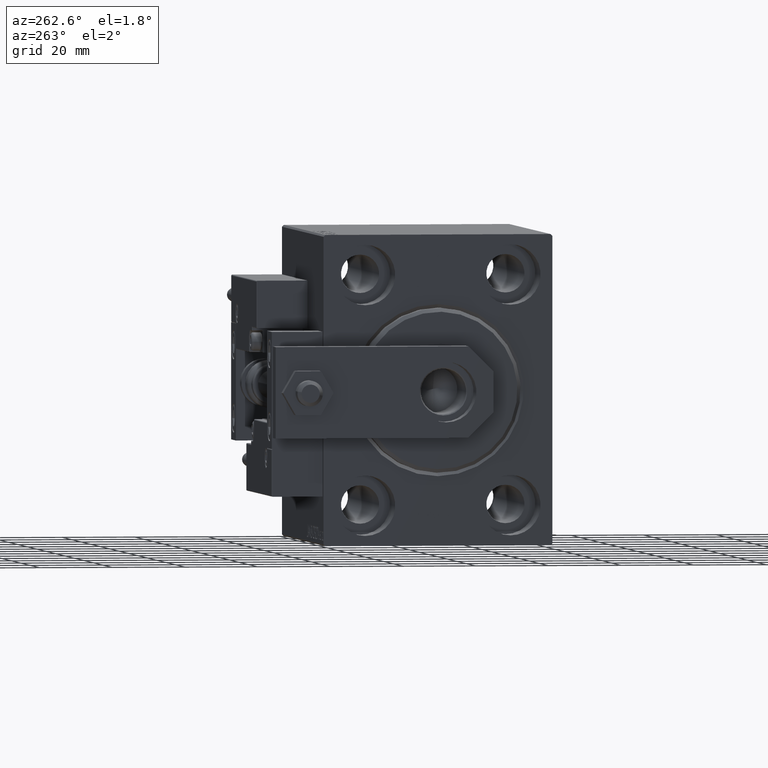
[diagram: clean part render]
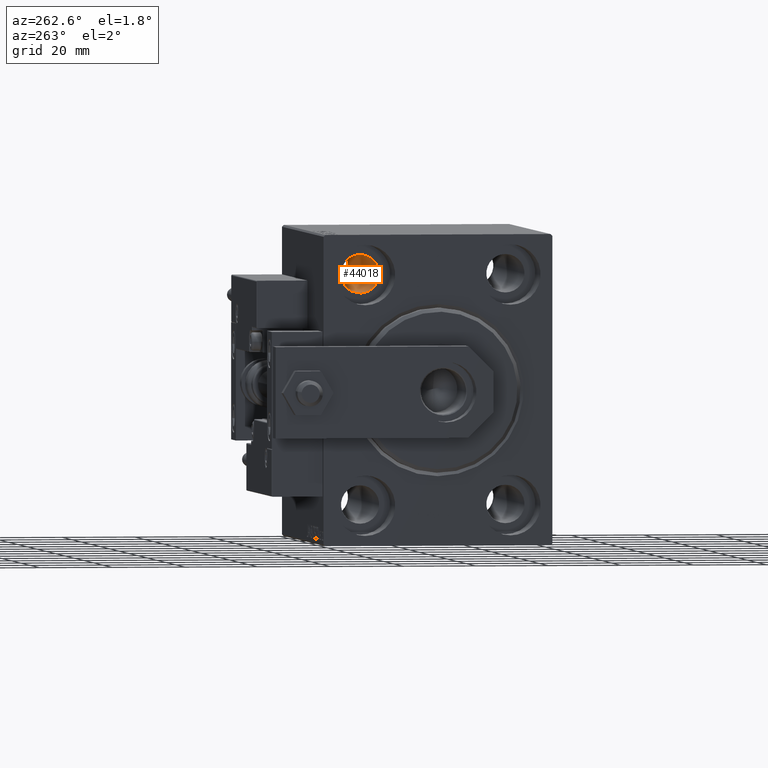
[diagram: same view with one face highlighted and labeled with its STEP entity id]
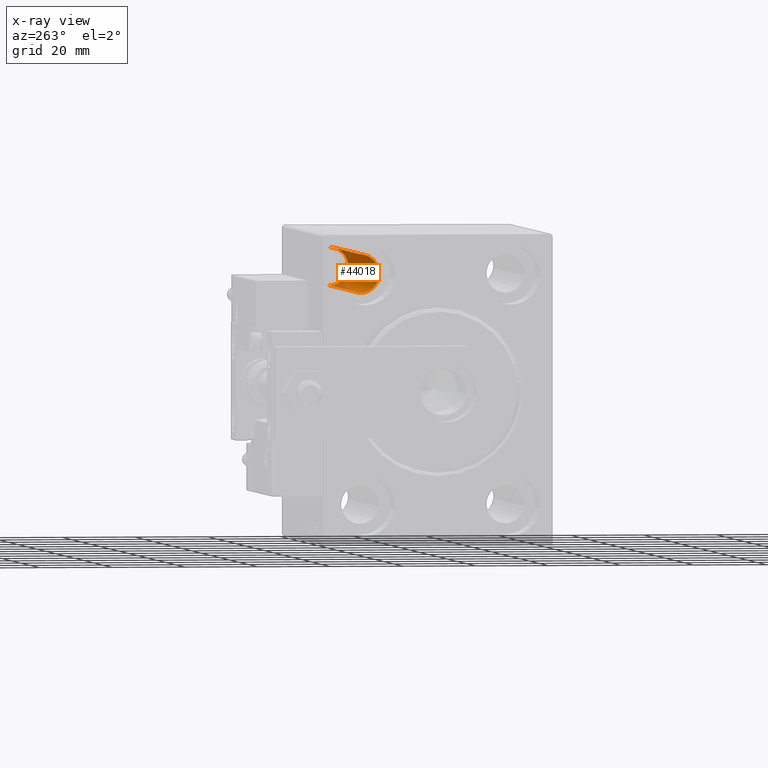
[diagram: x-ray of the same camera — body ghosted, the highlighted face saturated]
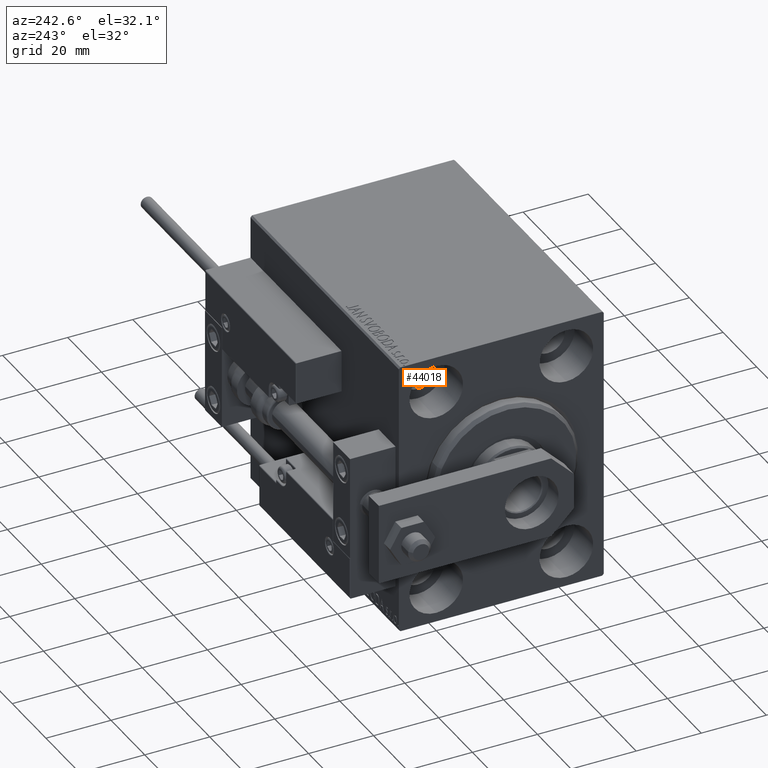
[diagram: same view with one face highlighted and labeled with its STEP entity id]
A machine part, auxiliary view. The second image highlights one B-rep face of the part: STEP entity #44018.
The next image is the same camera in x-ray: the body ghosted, the highlighted face saturated — about 13% of this face is hidden behind the body in this view.
A second angle (auxiliary view) of the same face is appended — the face is thin or edge-on in the first view.
In plain terms, the highlighted cylindrical surface (edge-blend (fillet) strip) has radius 5.25 mm, axis along (-1, -0, -0).
Its self-contained STEP definition (entity closure, byte-faithful):
#1089 = LINE ( 'NONE', #20844, #45565 ) ;
#1366 = DIRECTION ( 'NONE',  ( 0.000000000000000000, 0.000000000000000000, 1.000000000000000000 ) ) ;
#2947 = CIRCLE ( 'NONE', #11046, 5.249999999999997335 ) ;
#2964 = FACE_OUTER_BOUND ( 'NONE', #44362, .T. ) ;
#3093 = CARTESIAN_POINT ( 'NONE',  ( 10.99999999999999645, 20.00000000000000355, 26.25000000000000355 ) ) ;
#3532 = VERTEX_POINT ( 'NONE', #40714 ) ;
#10625 = ORIENTED_EDGE ( 'NONE', *, *, #14974, .T. ) ;
#11046 = AXIS2_PLACEMENT_3D ( 'NONE', #40684, #47279, #24757 ) ;
#14974 = EDGE_CURVE ( 'NONE', #24070, #15674, #43717, .T. ) ;
#15674 = VERTEX_POINT ( 'NONE', #35309 ) ;
#16209 = ORIENTED_EDGE ( 'NONE', *, *, #23191, .T. ) ;
#16558 = DIRECTION ( 'NONE',  ( -1.000000000000000000, 0.000000000000000000, 0.000000000000000000 ) ) ;
#17295 = VECTOR ( 'NONE', #31843, 1000.000000000000000 ) ;
#17647 = CARTESIAN_POINT ( 'NONE',  ( 88.00000000000000000, 20.00000000000000355, 31.50000000000000000 ) ) ;
#18683 = AXIS2_PLACEMENT_3D ( 'NONE', #36052, #16558, #1366 ) ;
#20844 = CARTESIAN_POINT ( 'NONE',  ( 88.00000000000000000, 20.00000000000000355, 36.75000000000000000 ) ) ;
#21994 = EDGE_CURVE ( 'NONE', #39038, #15674, #1089, .T. ) ;
#23191 = EDGE_CURVE ( 'NONE', #3532, #24070, #49132, .T. ) ;
#24070 = VERTEX_POINT ( 'NONE', #3093 ) ;
#24098 = ORIENTED_EDGE ( 'NONE', *, *, #21994, .F. ) ;
#24757 = DIRECTION ( 'NONE',  ( 0.000000000000000000, 0.000000000000000000, -1.000000000000000000 ) ) ;
#31843 = DIRECTION ( 'NONE',  ( -1.000000000000000000, -0.000000000000000000, -0.000000000000000000 ) ) ;
#32564 = EDGE_CURVE ( 'NONE', #3532, #39038, #2947, .T. ) ;
#35309 = CARTESIAN_POINT ( 'NONE',  ( 10.99999999999999645, 20.00000000000000355, 36.75000000000000000 ) ) ;
#36052 = CARTESIAN_POINT ( 'NONE',  ( 10.99999999999999645, 20.00000000000000355, 31.50000000000000000 ) ) ;
#36236 = CARTESIAN_POINT ( 'NONE',  ( 77.00000000000000000, 20.00000000000000355, 36.75000000000000000 ) ) ;
#36274 = DIRECTION ( 'NONE',  ( -1.000000000000000000, -0.000000000000000000, -0.000000000000000000 ) ) ;
#36890 = CYLINDRICAL_SURFACE ( 'NONE', #48349, 5.249999999999997335 ) ;
#39038 = VERTEX_POINT ( 'NONE', #36236 ) ;
#40684 = CARTESIAN_POINT ( 'NONE',  ( 77.00000000000000000, 20.00000000000000355, 31.50000000000000000 ) ) ;
#40714 = CARTESIAN_POINT ( 'NONE',  ( 77.00000000000000000, 20.00000000000000355, 26.25000000000000355 ) ) ;
#41530 = CARTESIAN_POINT ( 'NONE',  ( 88.00000000000000000, 20.00000000000000355, 26.25000000000000355 ) ) ;
#41712 = ORIENTED_EDGE ( 'NONE', *, *, #32564, .F. ) ;
#43717 = CIRCLE ( 'NONE', #18683, 5.249999999999997335 ) ;
#44018 = ADVANCED_FACE ( 'NONE', ( #2964 ), #36890, .F. ) ;
#44362 = EDGE_LOOP ( 'NONE', ( #41712, #16209, #10625, #24098 ) ) ;
#44735 = DIRECTION ( 'NONE',  ( 0.000000000000000000, 0.000000000000000000, 1.000000000000000000 ) ) ;
#45481 = DIRECTION ( 'NONE',  ( -1.000000000000000000, -0.000000000000000000, -0.000000000000000000 ) ) ;
#45565 = VECTOR ( 'NONE', #36274, 1000.000000000000000 ) ;
#47279 = DIRECTION ( 'NONE',  ( -1.000000000000000000, -0.000000000000000000, -0.000000000000000000 ) ) ;
#48349 = AXIS2_PLACEMENT_3D ( 'NONE', #17647, #45481, #44735 ) ;
#49132 = LINE ( 'NONE', #41530, #17295 ) ;